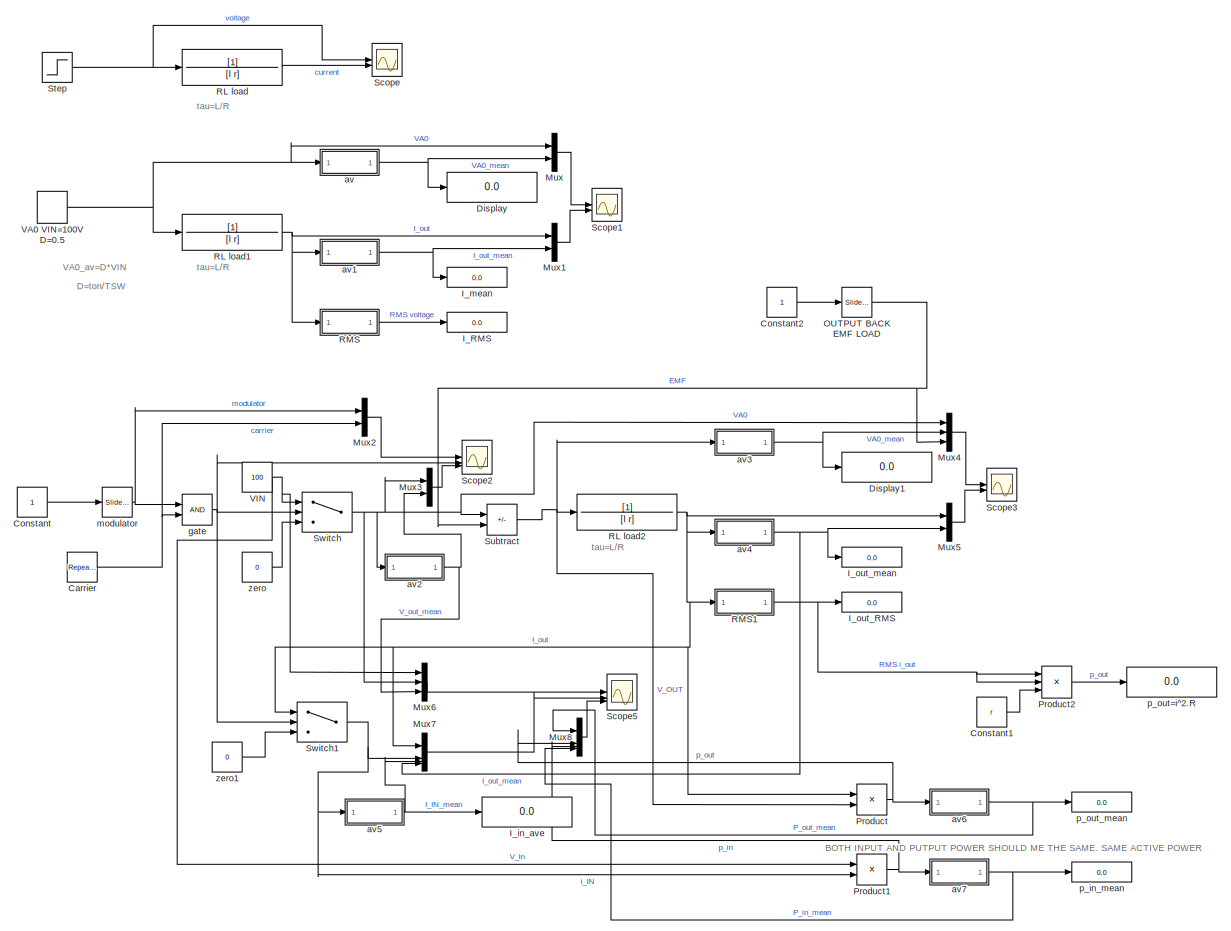
[diagram: root canvas - part 1/1, most of the canvas]
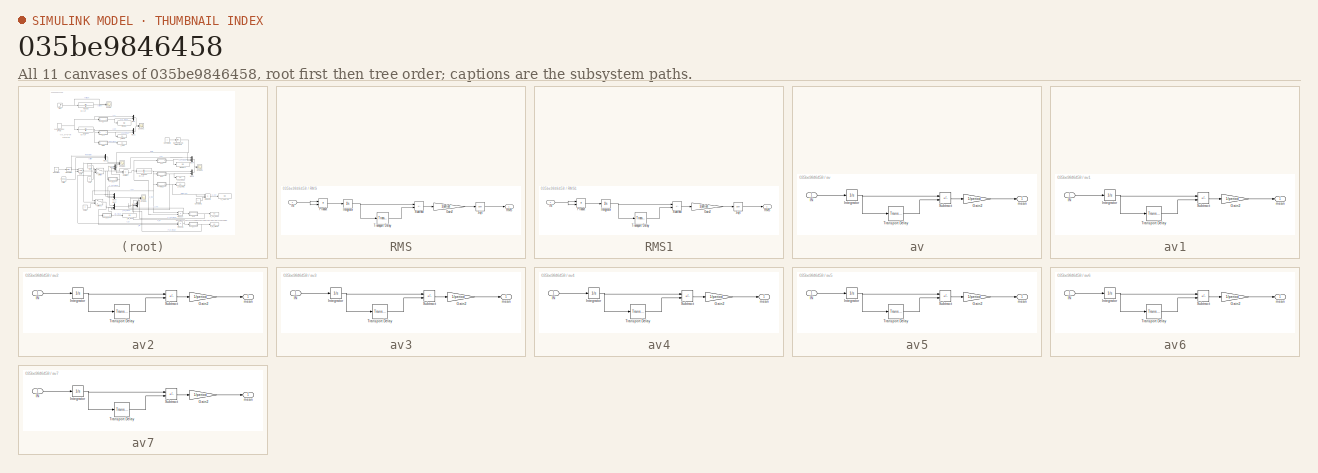
[diagram: thumbnail index - all 11 canvases of the model, root first then tree order]
MODEL slx_035be9846458
KIND model
CONFIG AbsTol = auto
CONFIG EnableMultiTasking = off
CONFIG FixedStep = auto
CONFIG MaxStep = 1e-5
CONFIG MinStep = auto
CONFIG RelTol = 1e-3
CONFIG SampleTimeConstraint = Unconstrained
CONFIG SolverName = VariableStepAuto
CONFIG StartTime = 0.0
CONFIG StopTime = inf
BLOCK [Reference] Carrier   REF=simulink/Sources/Repeating
Sequence
  SourceBlock = simulink/Sources/Repeating\nSequence
  SourceType = Repeating table
BLOCK [Constant] Constant
BLOCK [Constant] Constant1
  Value = r
BLOCK [Constant] Constant2
BLOCK [Display] Display
  Decimation = 1
BLOCK [Display] Display1
  Decimation = 1
BLOCK [Display] I_RMS
  Decimation = 1
BLOCK [Display] I_in_ave
  Decimation = 1
BLOCK [Display] I_mean
  Decimation = 1
BLOCK [Display] I_out_RMS
  Decimation = 1
BLOCK [Display] I_out_mean
  Decimation = 1
BLOCK [Mux] Mux
  DisplayOption = bar
  Inputs = 2
BLOCK [Mux] Mux1
  DisplayOption = bar
  Inputs = 2
BLOCK [Mux] Mux2
  DisplayOption = bar
  Inputs = 2
BLOCK [Mux] Mux3
  DisplayOption = bar
  Inputs = 2
BLOCK [Mux] Mux4
  DisplayOption = bar
  Inputs = 3
BLOCK [Mux] Mux5
  DisplayOption = bar
  Inputs = 2
BLOCK [Mux] Mux6
  DisplayOption = bar
  Inputs = 3
BLOCK [Mux] Mux7
  DisplayOption = bar
BLOCK [Mux] Mux8
  DisplayOption = bar
BLOCK [Reference] OUTPUT BACK EMF LOAD  REF=simulink/Math
Operations/Slider
Gain
  SourceBlock = simulink/Math\nOperations/Slider\nGain
  SourceType = Slider Gain
BLOCK [Product] Product
BLOCK [Product] Product1
BLOCK [Product] Product2
  Inputs = 3
BLOCK [TransferFcn] RL load
  Denominator = [l r]
BLOCK [TransferFcn] RL load1
  Denominator = [l r]
BLOCK [TransferFcn] RL load2
  Denominator = [l r]
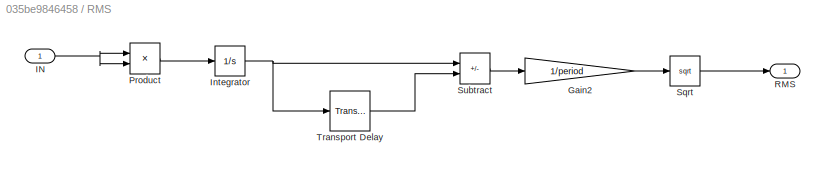
BLOCK [SubSystem] RMS
BLOCK [Gain] RMS/Gain2
  Gain = 1/period
BLOCK [Inport] RMS/IN
BLOCK [Integrator] RMS/Integrator
BLOCK [Product] RMS/Product
BLOCK [Outport] RMS/RMS
BLOCK [Sqrt] RMS/Sqrt
BLOCK [Sum] RMS/Subtract
  IconShape = rectangular
  Inputs = +-
BLOCK [TransportDelay] RMS/Transport Delay
  DelayTime = period
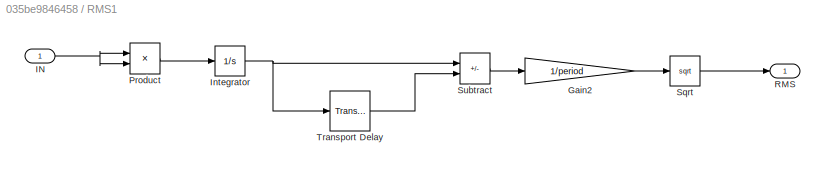
BLOCK [SubSystem] RMS1
BLOCK [Gain] RMS1/Gain2
  Gain = 1/period
BLOCK [Inport] RMS1/IN
BLOCK [Integrator] RMS1/Integrator
BLOCK [Product] RMS1/Product
BLOCK [Outport] RMS1/RMS
BLOCK [Sqrt] RMS1/Sqrt
BLOCK [Sum] RMS1/Subtract
  IconShape = rectangular
  Inputs = +-
BLOCK [TransportDelay] RMS1/Transport Delay
  DelayTime = period
BLOCK [Scope] Scope
  Floating = off
  NumInputPorts = 2
  ScopeSpecificationString = Simulink.scopes.TimeScopeBlockCfg('CurrentConfiguration', extmgr.ConfigurationSet(extmgr.Configuration('Core','General UI',true),extmgr.Configuration('Core','Source UI',true),extmgr.Configuration('Sources','WiredSimulink',true),extmgr.Configuration('Visuals','Time Domain',true,'SerializedDisplays',{struct('MinYLimReal','-12.5','MaxYLimReal','112.5','YLabelReal','[V]','MinYLimMag','0.00000','MaxYLi...<+2367ch>
BLOCK [Scope] Scope1
  Floating = off
  NumInputPorts = 2
  ScopeSpecificationString = Simulink.scopes.TimeScopeBlockCfg('CurrentConfiguration', extmgr.ConfigurationSet(extmgr.Configuration('Core','General UI',true),extmgr.Configuration('Core','Source UI',true),extmgr.Configuration('Sources','WiredSimulink',true,'DataLoggingVariableName','ScopeData1'),extmgr.Configuration('Visuals','Time Domain',true,'SerializedDisplays',{struct('MinYLimReal','-12.5','MaxYLimReal','112.5','YLabelRea...<+2603ch>
BLOCK [Scope] Scope2
  Floating = off
  NumInputPorts = 3
  ScopeSpecificationString = Simulink.scopes.TimeScopeBlockCfg('CurrentConfiguration', extmgr.ConfigurationSet(extmgr.Configuration('Core','General UI',true),extmgr.Configuration('Core','Source UI',true),extmgr.Configuration('Sources','WiredSimulink',true,'DataLoggingVariableName','ScopeData2'),extmgr.Configuration('Visuals','Time Domain',true,'SerializedDisplays',{struct('MinYLimReal','-0.125','MaxYLimReal','1.125','YLabelRe...<+3537ch>
BLOCK [Scope] Scope3
  Floating = off
  NumInputPorts = 2
  ScopeSpecificationString = Simulink.scopes.TimeScopeBlockCfg('CurrentConfiguration', extmgr.ConfigurationSet(extmgr.Configuration('Core','General UI',true),extmgr.Configuration('Core','Source UI',true),extmgr.Configuration('Sources','WiredSimulink',true,'DataLoggingVariableName','ScopeData3'),extmgr.Configuration('Visuals','Time Domain',true,'SerializedDisplays',{struct('MinYLimReal','-35.00000','MaxYLimReal','115.00000','Y...<+2711ch>
BLOCK [Scope] Scope5
  Floating = off
  NumInputPorts = 3
  ScopeSpecificationString = Simulink.scopes.TimeScopeBlockCfg('CurrentConfiguration', extmgr.ConfigurationSet(extmgr.Configuration('Core','General UI',true),extmgr.Configuration('Core','Source UI',true),extmgr.Configuration('Sources','WiredSimulink',true,'DataLoggingVariableName','ScopeData2'),extmgr.Configuration('Visuals','Time Domain',true,'SerializedDisplays',{struct('MinYLimReal','-12.5','MaxYLimReal','112.5','YLabelRea...<+3999ch>
BLOCK [Step] Step
  After = 100
  SampleTime = 0
BLOCK [Sum] Subtract
  IconShape = rectangular
  Inputs = +-
BLOCK [Switch] Switch
  Criteria = u2 > Threshold
  InputSameDT = off
  SaturateOnIntegerOverflow = off
BLOCK [Switch] Switch1
  Criteria = u2 > Threshold
  InputSameDT = off
  SaturateOnIntegerOverflow = off
BLOCK [DiscretePulseGenerator] VA0 VIN=100V D=0.5
  Amplitude = 100
  Period = 1/fsw
  PulseType = Time based
  PulseWidth = 50
BLOCK [Constant] VIN
  Value = 100
BLOCK [SubSystem] av
BLOCK [Gain] av/Gain2
  Gain = 1/period
BLOCK [Inport] av/IN
BLOCK [Integrator] av/Integrator
BLOCK [Sum] av/Subtract
  IconShape = rectangular
  Inputs = +-
BLOCK [TransportDelay] av/Transport Delay
  DelayTime = period
BLOCK [Outport] av/mean
BLOCK [SubSystem] av1
BLOCK [Gain] av1/Gain2
  Gain = 1/period
BLOCK [Inport] av1/IN
BLOCK [Integrator] av1/Integrator
BLOCK [Sum] av1/Subtract
  IconShape = rectangular
  Inputs = +-
BLOCK [TransportDelay] av1/Transport Delay
  DelayTime = period
BLOCK [Outport] av1/mean
BLOCK [SubSystem] av2
BLOCK [Gain] av2/Gain2
  Gain = 1/period
BLOCK [Inport] av2/IN
BLOCK [Integrator] av2/Integrator
BLOCK [Sum] av2/Subtract
  IconShape = rectangular
  Inputs = +-
BLOCK [TransportDelay] av2/Transport Delay
  DelayTime = period
BLOCK [Outport] av2/mean
BLOCK [SubSystem] av3
BLOCK [Gain] av3/Gain2
  Gain = 1/period
BLOCK [Inport] av3/IN
BLOCK [Integrator] av3/Integrator
BLOCK [Sum] av3/Subtract
  IconShape = rectangular
  Inputs = +-
BLOCK [TransportDelay] av3/Transport Delay
  DelayTime = period
BLOCK [Outport] av3/mean
BLOCK [SubSystem] av4
BLOCK [Gain] av4/Gain2
  Gain = 1/period
BLOCK [Inport] av4/IN
BLOCK [Integrator] av4/Integrator
BLOCK [Sum] av4/Subtract
  IconShape = rectangular
  Inputs = +-
BLOCK [TransportDelay] av4/Transport Delay
  DelayTime = period
BLOCK [Outport] av4/mean
BLOCK [SubSystem] av5
BLOCK [Gain] av5/Gain2
  Gain = 1/period
BLOCK [Inport] av5/IN
BLOCK [Integrator] av5/Integrator
BLOCK [Sum] av5/Subtract
  IconShape = rectangular
  Inputs = +-
BLOCK [TransportDelay] av5/Transport Delay
  DelayTime = period
BLOCK [Outport] av5/mean
BLOCK [SubSystem] av6
BLOCK [Gain] av6/Gain2
  Gain = 1/period
BLOCK [Inport] av6/IN
BLOCK [Integrator] av6/Integrator
BLOCK [Sum] av6/Subtract
  IconShape = rectangular
  Inputs = +-
BLOCK [TransportDelay] av6/Transport Delay
  DelayTime = period
BLOCK [Outport] av6/mean
BLOCK [SubSystem] av7
BLOCK [Gain] av7/Gain2
  Gain = 1/period
BLOCK [Inport] av7/IN
BLOCK [Integrator] av7/Integrator
BLOCK [Sum] av7/Subtract
  IconShape = rectangular
  Inputs = +-
BLOCK [TransportDelay] av7/Transport Delay
  DelayTime = period
BLOCK [Outport] av7/mean
BLOCK [RelationalOperator] gate
  InputSameDT = off
  OutDataTypeStr = boolean
  RndMeth = Simplest
BLOCK [Reference] modulator  REF=simulink/Math
Operations/Slider
Gain
  SourceBlock = simulink/Math\nOperations/Slider\nGain
  SourceType = Slider Gain
BLOCK [Display] p_in_mean
  Decimation = 1
BLOCK [Display] p_out=i^2.R
  Decimation = 1
BLOCK [Display] p_out_mean
  Decimation = 1
BLOCK [Constant] zero
  Value = 0
BLOCK [Constant] zero1
  Value = 0
ANNOTATION (root): BOTH INPUT AND PUTPUT POWER SHOULD ME THE SAME. SAME ACTIVE POWER
ANNOTATION (root): D=ton/TSW
ANNOTATION (root): VA0_av=D*VIN
ANNOTATION (root): tau=L/R
NET Carrier :1 -> Mux2:2, gate:2
LINE Constant1:1 -> Product2:3
LINE Constant2:1 -> OUTPUT BACK EMF LOAD:1
LINE Constant:1 -> modulator:1
LINE Mux1:1 -> Scope1:2
LINE Mux2:1 -> Scope2:1
LINE Mux3:1 -> Scope2:3
LINE Mux4:1 -> Scope3:1
LINE Mux5:1 -> Scope3:2
LINE Mux6:1 -> Scope5:1
LINE Mux7:1 -> Scope5:2
LINE Mux8:1 -> Scope5:3
LINE Mux:1 -> Scope1:1
NET OUTPUT BACK EMF LOAD:1 -> Mux4:3, Subtract:2
NET Product1:1 -> Mux8:3, av7:1
LINE Product2:1 -> p_out=i^2.R:1
NET Product:1 -> Mux8:2, av6:1
NET RL load1:1 -> Mux1:1, RMS:1, av1:1
NET RL load2:1 -> Mux5:1, Mux7:1, Product:1, RMS1:1, Switch1:1, av4:1
LINE RL load:1 -> Scope:2
LINE RMS/Gain2:1 -> RMS/Sqrt:1
NET RMS/IN:1 -> RMS/Product:1, RMS/Product:2
NET RMS/Integrator:1 -> RMS/Subtract:1, RMS/Transport Delay:1
LINE RMS/Product:1 -> RMS/Integrator:1
LINE RMS/Sqrt:1 -> RMS/RMS:1
LINE RMS/Subtract:1 -> RMS/Gain2:1
LINE RMS/Transport Delay:1 -> RMS/Subtract:2
LINE RMS1/Gain2:1 -> RMS1/Sqrt:1
NET RMS1/IN:1 -> RMS1/Product:1, RMS1/Product:2
NET RMS1/Integrator:1 -> RMS1/Subtract:1, RMS1/Transport Delay:1
LINE RMS1/Product:1 -> RMS1/Integrator:1
LINE RMS1/Sqrt:1 -> RMS1/RMS:1
LINE RMS1/Subtract:1 -> RMS1/Gain2:1
LINE RMS1/Transport Delay:1 -> RMS1/Subtract:2
NET RMS1:1 -> I_out_RMS:1, Product2:1, Product2:2
LINE RMS:1 -> I_RMS:1
NET Step:1 -> RL load:1, Scope:1
NET Subtract:1 -> Product:2, RL load2:1, av3:1
NET Switch1:1 -> Mux7:2, Product1:2, av5:1
NET Switch:1 -> Mux3:1, Mux4:1, Mux6:2, Subtract:1, av2:1
NET VA0 VIN=100V D=0.5:1 -> Mux:1, RL load1:1, av:1
NET VIN:1 -> Mux6:1, Product1:1, Switch:1
LINE av/Gain2:1 -> av/mean:1
LINE av/IN:1 -> av/Integrator:1
NET av/Integrator:1 -> av/Subtract:1, av/Transport Delay:1
LINE av/Subtract:1 -> av/Gain2:1
LINE av/Transport Delay:1 -> av/Subtract:2
LINE av1/Gain2:1 -> av1/mean:1
LINE av1/IN:1 -> av1/Integrator:1
NET av1/Integrator:1 -> av1/Subtract:1, av1/Transport Delay:1
LINE av1/Subtract:1 -> av1/Gain2:1
LINE av1/Transport Delay:1 -> av1/Subtract:2
NET av1:1 -> I_mean:1, Mux1:2
LINE av2/Gain2:1 -> av2/mean:1
LINE av2/IN:1 -> av2/Integrator:1
NET av2/Integrator:1 -> av2/Subtract:1, av2/Transport Delay:1
LINE av2/Subtract:1 -> av2/Gain2:1
LINE av2/Transport Delay:1 -> av2/Subtract:2
NET av2:1 -> Mux3:2, Mux6:3
LINE av3/Gain2:1 -> av3/mean:1
LINE av3/IN:1 -> av3/Integrator:1
NET av3/Integrator:1 -> av3/Subtract:1, av3/Transport Delay:1
LINE av3/Subtract:1 -> av3/Gain2:1
LINE av3/Transport Delay:1 -> av3/Subtract:2
NET av3:1 -> Display1:1, Mux4:2
LINE av4/Gain2:1 -> av4/mean:1
LINE av4/IN:1 -> av4/Integrator:1
NET av4/Integrator:1 -> av4/Subtract:1, av4/Transport Delay:1
LINE av4/Subtract:1 -> av4/Gain2:1
LINE av4/Transport Delay:1 -> av4/Subtract:2
NET av4:1 -> I_out_mean:1, Mux5:2, Mux7:4
LINE av5/Gain2:1 -> av5/mean:1
LINE av5/IN:1 -> av5/Integrator:1
NET av5/Integrator:1 -> av5/Subtract:1, av5/Transport Delay:1
LINE av5/Subtract:1 -> av5/Gain2:1
LINE av5/Transport Delay:1 -> av5/Subtract:2
NET av5:1 -> I_in_ave:1, Mux7:3
LINE av6/Gain2:1 -> av6/mean:1
LINE av6/IN:1 -> av6/Integrator:1
NET av6/Integrator:1 -> av6/Subtract:1, av6/Transport Delay:1
LINE av6/Subtract:1 -> av6/Gain2:1
LINE av6/Transport Delay:1 -> av6/Subtract:2
NET av6:1 -> Mux8:1, p_out_mean:1
LINE av7/Gain2:1 -> av7/mean:1
LINE av7/IN:1 -> av7/Integrator:1
NET av7/Integrator:1 -> av7/Subtract:1, av7/Transport Delay:1
LINE av7/Subtract:1 -> av7/Gain2:1
LINE av7/Transport Delay:1 -> av7/Subtract:2
NET av7:1 -> Mux8:4, p_in_mean:1
NET av:1 -> Display:1, Mux:2
NET gate:1 -> Scope2:2, Switch1:2, Switch:2
NET modulator:1 -> Mux2:1, gate:1
LINE zero1:1 -> Switch1:3
LINE zero:1 -> Switch:3
note: NET lines group one-source signal fan-out (src -> all destinations, sorted); 1:1 wires keep LINE
